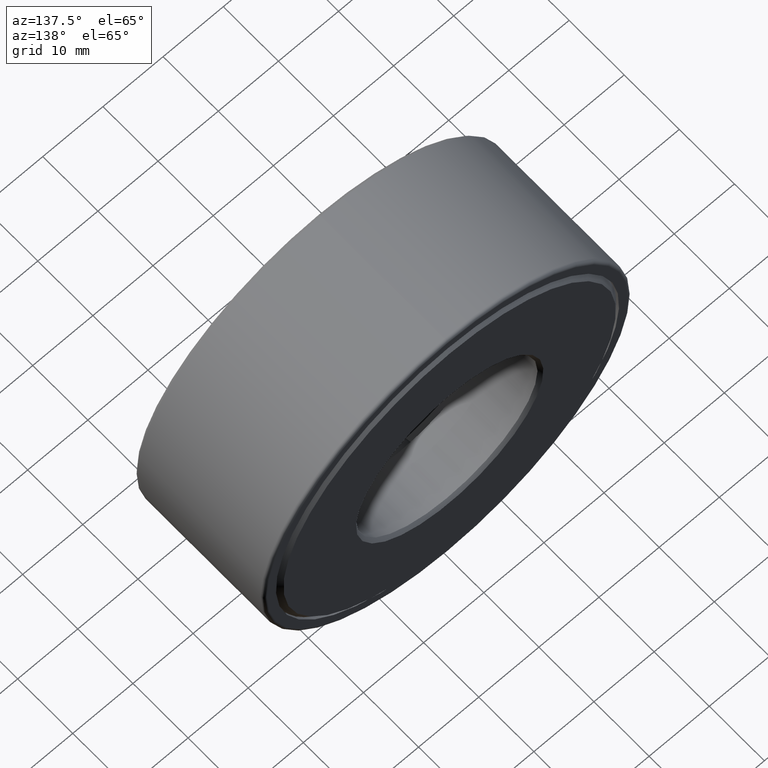
[diagram: clean part render]
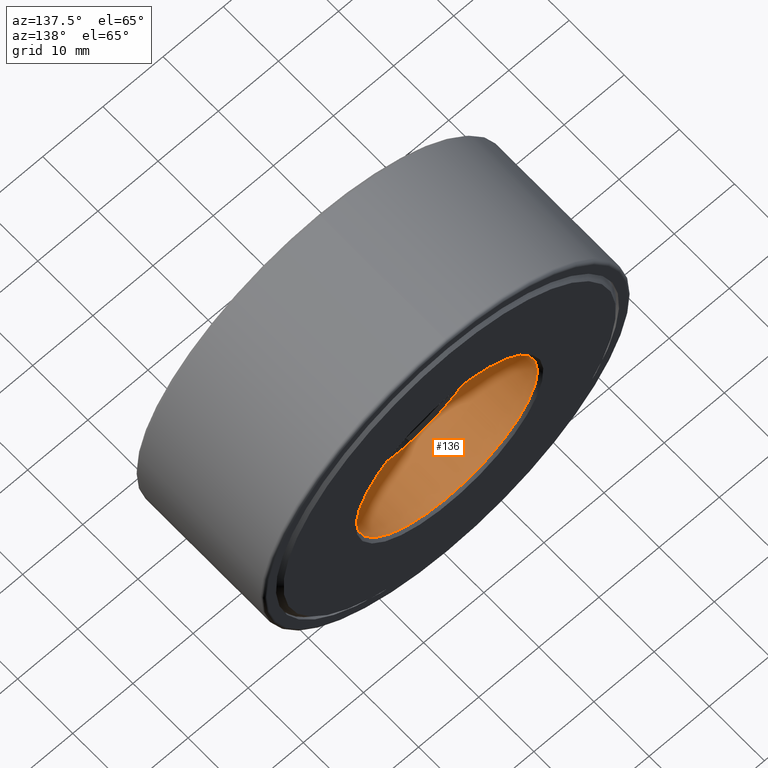
[diagram: same view with one face highlighted and labeled with its STEP entity id]
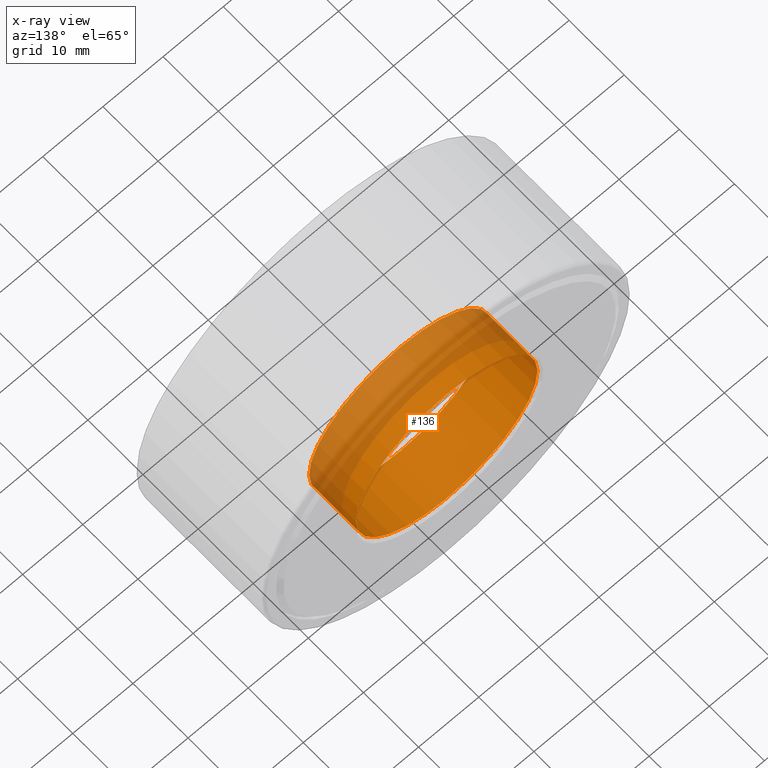
[diagram: x-ray of the same camera — body ghosted, the highlighted face saturated]
A machine part, auxiliary view. The second image highlights one B-rep face of the part: STEP entity #136.
The next image is the same camera in x-ray: the body ghosted, the highlighted face saturated — about 38% of this face is hidden behind the body in this view.
In plain terms, the highlighted cylindrical surface (bore or boss wall) has radius 15.0812 mm, axis along (-0, 1, -0).
Its self-contained STEP definition (entity closure, byte-faithful):
#112 = CARTESIAN_POINT ( 'NONE',  ( 0.0000000000000000000, 0.9174999999999997600, 0.0000000000000000000 ) ) ;
#123 = FACE_OUTER_BOUND ( 'NONE', #137, .T. ) ;
#136 = ADVANCED_FACE ( 'NONE', ( #123, #435 ), #164, .F. ) ;
#137 = EDGE_LOOP ( 'NONE', ( #416 ) ) ;
#159 = CIRCLE ( 'NONE', #336, 0.5937500000000000000 ) ;
#164 = CYLINDRICAL_SURFACE ( 'NONE', #254, 0.5937500000000000000 ) ;
#169 = AXIS2_PLACEMENT_3D ( 'NONE', #112, #428, #203 ) ;
#192 = DIRECTION ( 'NONE',  ( 0.0000000000000000000, 0.0000000000000000000, 1.000000000000000000 ) ) ;
#203 = DIRECTION ( 'NONE',  ( 0.0000000000000000000, 0.0000000000000000000, 1.000000000000000000 ) ) ;
#244 = CARTESIAN_POINT ( 'NONE',  ( 0.0000000000000000000, 0.9174999999999997600, 0.5937500000000000000 ) ) ;
#254 = AXIS2_PLACEMENT_3D ( 'NONE', #598, #460, #500 ) ;
#261 = VERTEX_POINT ( 'NONE', #434 ) ;
#293 = EDGE_CURVE ( 'NONE', #261, #261, #159, .T. ) ;
#322 = CIRCLE ( 'NONE', #169, 0.5937500000000000000 ) ;
#336 = AXIS2_PLACEMENT_3D ( 'NONE', #465, #605, #192 ) ;
#342 = VERTEX_POINT ( 'NONE', #244 ) ;
#357 = ORIENTED_EDGE ( 'NONE', *, *, #293, .F. ) ;
#416 = ORIENTED_EDGE ( 'NONE', *, *, #448, .T. ) ;
#428 = DIRECTION ( 'NONE',  ( -0.0000000000000000000, 1.000000000000000000, -0.0000000000000000000 ) ) ;
#431 = EDGE_LOOP ( 'NONE', ( #357 ) ) ;
#434 = CARTESIAN_POINT ( 'NONE',  ( 0.0000000000000000000, 0.5812499999999999300, 0.5937500000000000000 ) ) ;
#435 = FACE_OUTER_BOUND ( 'NONE', #431, .T. ) ;
#448 = EDGE_CURVE ( 'NONE', #342, #342, #322, .T. ) ;
#460 = DIRECTION ( 'NONE',  ( -0.0000000000000000000, 1.000000000000000000, -0.0000000000000000000 ) ) ;
#465 = CARTESIAN_POINT ( 'NONE',  ( 0.0000000000000000000, 0.5812499999999999300, 0.0000000000000000000 ) ) ;
#500 = DIRECTION ( 'NONE',  ( 0.0000000000000000000, 0.0000000000000000000, 1.000000000000000000 ) ) ;
#598 = CARTESIAN_POINT ( 'NONE',  ( 0.0000000000000000000, 0.0000000000000000000, 0.0000000000000000000 ) ) ;
#605 = DIRECTION ( 'NONE',  ( -0.0000000000000000000, 1.000000000000000000, -0.0000000000000000000 ) ) ;